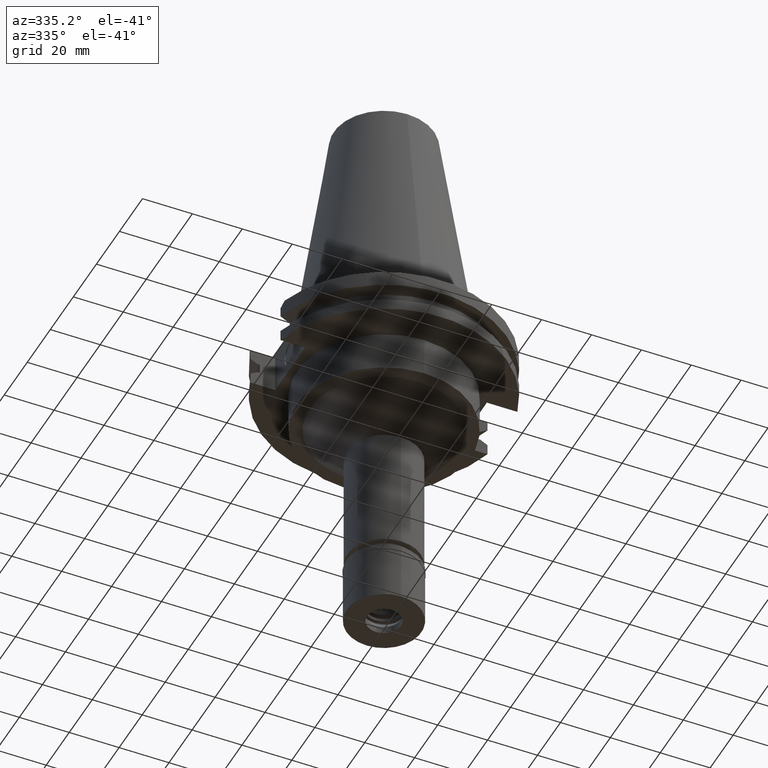
[diagram: clean part render]
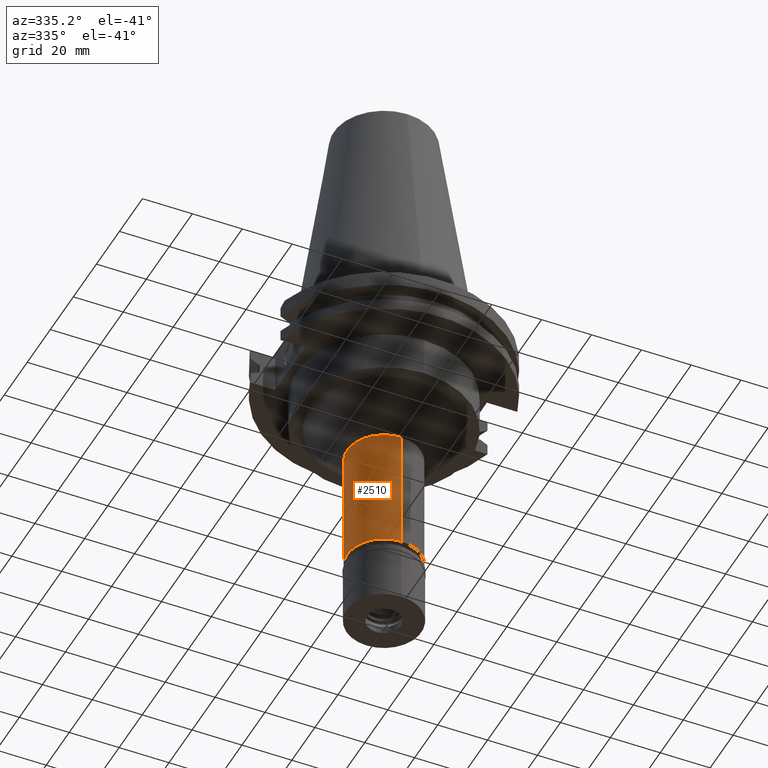
[diagram: same view with one face highlighted and labeled with its STEP entity id]
A machine part, auxiliary view. The second image highlights one B-rep face of the part: STEP entity #2510.
In plain terms, the highlighted cylindrical surface (partial cylindrical patch) has radius 14.75 mm, axis along (0, 0, -1).
Its self-contained STEP definition (entity closure, byte-faithful):
#155 = CARTESIAN_POINT ( 'NONE',  ( 0.0000000000000000000, 14.75000000000000000, -100.2000000000000028 ) ) ;
#295 = LINE ( 'NONE', #557, #1310 ) ;
#304 = CARTESIAN_POINT ( 'NONE',  ( 0.0000000000000000000, -14.75000000000000000, -100.2000000000000028 ) ) ;
#549 = DIRECTION ( 'NONE',  ( 0.0000000000000000000, 0.0000000000000000000, -1.000000000000000000 ) ) ;
#552 = VERTEX_POINT ( 'NONE', #155 ) ;
#557 = CARTESIAN_POINT ( 'NONE',  ( 0.0000000000000000000, 14.75000000000000000, -50.00000000000000000 ) ) ;
#635 = CARTESIAN_POINT ( 'NONE',  ( 0.0000000000000000000, 0.0000000000000000000, -50.00000000000000000 ) ) ;
#642 = EDGE_CURVE ( 'NONE', #847, #3101, #1793, .T. ) ;
#679 = LINE ( 'NONE', #939, #868 ) ;
#742 = ORIENTED_EDGE ( 'NONE', *, *, #990, .T. ) ;
#847 = VERTEX_POINT ( 'NONE', #1108 ) ;
#852 = CIRCLE ( 'NONE', #1401, 14.75000000000000000 ) ;
#868 = VECTOR ( 'NONE', #1201, 1000.000000000000000 ) ;
#875 = DIRECTION ( 'NONE',  ( 0.0000000000000000000, 0.0000000000000000000, -1.000000000000000000 ) ) ;
#876 = CARTESIAN_POINT ( 'NONE',  ( 0.0000000000000000000, 2.602741842227999566E-14, -100.2000000000000028 ) ) ;
#939 = CARTESIAN_POINT ( 'NONE',  ( 0.0000000000000000000, -14.75000000000000000, -50.00000000000000000 ) ) ;
#990 = EDGE_CURVE ( 'NONE', #3101, #552, #295, .T. ) ;
#1021 = ORIENTED_EDGE ( 'NONE', *, *, #2914, .F. ) ;
#1029 = CARTESIAN_POINT ( 'NONE',  ( 0.0000000000000000000, 2.602741842227999566E-14, 112.5300000000000011 ) ) ;
#1088 = AXIS2_PLACEMENT_3D ( 'NONE', #635, #875, #1899 ) ;
#1108 = CARTESIAN_POINT ( 'NONE',  ( 0.0000000000000000000, -14.75000000000000000, -50.00000000000000000 ) ) ;
#1201 = DIRECTION ( 'NONE',  ( 0.0000000000000000000, 0.0000000000000000000, -1.000000000000000000 ) ) ;
#1310 = VECTOR ( 'NONE', #1361, 1000.000000000000000 ) ;
#1361 = DIRECTION ( 'NONE',  ( 0.0000000000000000000, 0.0000000000000000000, -1.000000000000000000 ) ) ;
#1362 = EDGE_CURVE ( 'NONE', #552, #3290, #852, .T. ) ;
#1401 = AXIS2_PLACEMENT_3D ( 'NONE', #876, #2450, #1900 ) ;
#1564 = CARTESIAN_POINT ( 'NONE',  ( 0.0000000000000000000, 14.75000000000000000, -50.00000000000000000 ) ) ;
#1793 = CIRCLE ( 'NONE', #1088, 14.75000000000000000 ) ;
#1819 = DIRECTION ( 'NONE',  ( 0.0000000000000000000, -1.000000000000000000, 0.0000000000000000000 ) ) ;
#1899 = DIRECTION ( 'NONE',  ( 0.0000000000000000000, -1.000000000000000000, 0.0000000000000000000 ) ) ;
#1900 = DIRECTION ( 'NONE',  ( 0.0000000000000000000, 1.000000000000000000, 0.0000000000000000000 ) ) ;
#2098 = ORIENTED_EDGE ( 'NONE', *, *, #1362, .T. ) ;
#2101 = AXIS2_PLACEMENT_3D ( 'NONE', #1029, #549, #1819 ) ;
#2450 = DIRECTION ( 'NONE',  ( 0.0000000000000000000, 0.0000000000000000000, 1.000000000000000000 ) ) ;
#2510 = ADVANCED_FACE ( 'NONE', ( #3091 ), #3026, .T. ) ;
#2630 = EDGE_LOOP ( 'NONE', ( #2098, #1021, #2966, #742 ) ) ;
#2914 = EDGE_CURVE ( 'NONE', #847, #3290, #679, .T. ) ;
#2966 = ORIENTED_EDGE ( 'NONE', *, *, #642, .T. ) ;
#3026 = CYLINDRICAL_SURFACE ( 'NONE', #2101, 14.75000000000000000 ) ;
#3091 = FACE_OUTER_BOUND ( 'NONE', #2630, .T. ) ;
#3101 = VERTEX_POINT ( 'NONE', #1564 ) ;
#3290 = VERTEX_POINT ( 'NONE', #304 ) ;